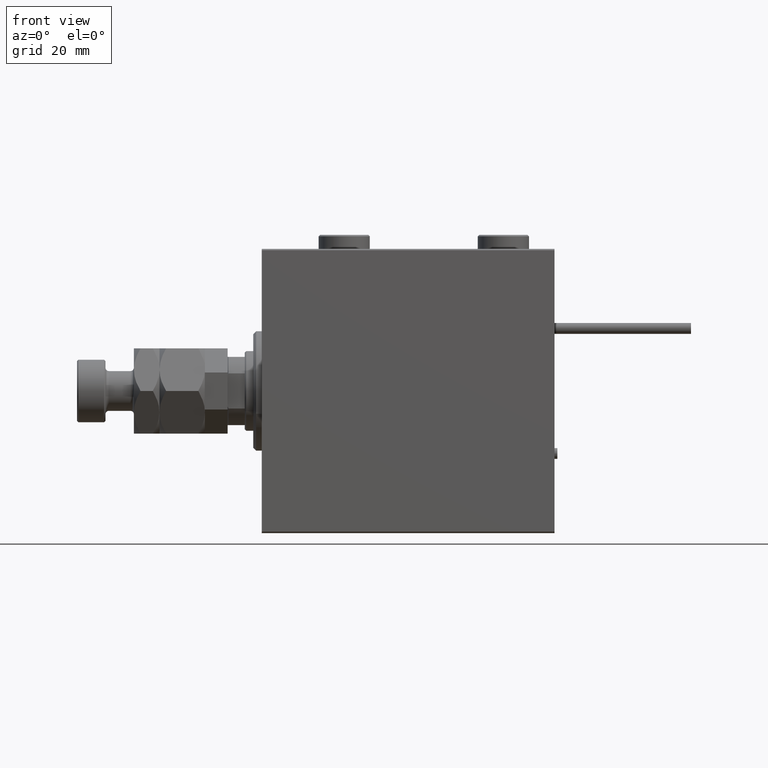
[diagram: clean part render]
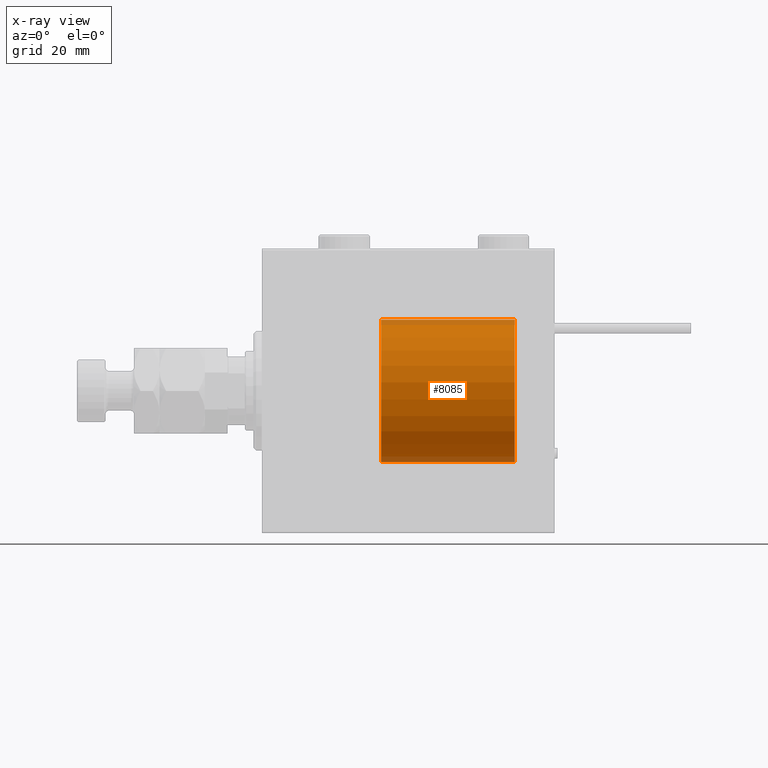
[diagram: x-ray — body ghosted, one internal face saturated and labeled with its STEP entity id]
A machine part, front view, then the same camera in x-ray: the body is ghosted and one INTERNAL B-rep face — a face not visible from any outside direction — is saturated and labeled: STEP entity #8085.
In plain terms, the highlighted cylindrical surface (partial cylindrical patch) has radius 25 mm, axis along (1, -0, -0).
Its self-contained STEP definition (entity closure, byte-faithful):
#7 = VECTOR ( 'NONE', #18981, 1000.000000000000000 ) ;
#522 = CIRCLE ( 'NONE', #39294, 25.00000000000000000 ) ;
#1568 = EDGE_CURVE ( 'NONE', #15772, #38441, #20667, .T. ) ;
#1921 = CARTESIAN_POINT ( 'NONE',  ( 0.000000000000000000, 0.000000000000000000, 47.00000000000000000 ) ) ;
#2536 = DIRECTION ( 'NONE',  ( -0.000000000000000000, -0.000000000000000000, -1.000000000000000000 ) ) ;
#2539 = EDGE_CURVE ( 'NONE', #19677, #15772, #23301, .T. ) ;
#4679 = ORIENTED_EDGE ( 'NONE', *, *, #1568, .T. ) ;
#7951 = AXIS2_PLACEMENT_3D ( 'NONE', #19262, #2536, #31666 ) ;
#8085 = ADVANCED_FACE ( 'NONE', ( #47313 ), #15213, .T. ) ;
#9875 = VECTOR ( 'NONE', #48212, 1000.000000000000000 ) ;
#10489 = CARTESIAN_POINT ( 'NONE',  ( -25.00000000000000000, 0.000000000000000000, 47.00000000000000000 ) ) ;
#12893 = EDGE_CURVE ( 'NONE', #14739, #38441, #30152, .T. ) ;
#14593 = DIRECTION ( 'NONE',  ( 0.000000000000000000, 0.000000000000000000, 1.000000000000000000 ) ) ;
#14739 = VERTEX_POINT ( 'NONE', #41576 ) ;
#15213 = CYLINDRICAL_SURFACE ( 'NONE', #7951, 25.00000000000000000 ) ;
#15772 = VERTEX_POINT ( 'NONE', #52407 ) ;
#16244 = DIRECTION ( 'NONE',  ( 1.000000000000000000, 0.000000000000000000, 0.000000000000000000 ) ) ;
#18137 = CARTESIAN_POINT ( 'NONE',  ( 25.00000000000000000, 3.061616997868383043E-15, 0.000000000000000000 ) ) ;
#18509 = ORIENTED_EDGE ( 'NONE', *, *, #12893, .F. ) ;
#18981 = DIRECTION ( 'NONE',  ( -0.000000000000000000, -0.000000000000000000, -1.000000000000000000 ) ) ;
#19262 = CARTESIAN_POINT ( 'NONE',  ( 0.000000000000000000, 0.000000000000000000, 47.00000000000000000 ) ) ;
#19677 = VERTEX_POINT ( 'NONE', #10489 ) ;
#20667 = CIRCLE ( 'NONE', #25832, 25.00000000000000000 ) ;
#22194 = EDGE_LOOP ( 'NONE', ( #18509, #50539, #39391, #4679 ) ) ;
#23301 = LINE ( 'NONE', #38476, #7 ) ;
#24084 = CARTESIAN_POINT ( 'NONE',  ( 0.000000000000000000, 0.000000000000000000, 0.000000000000000000 ) ) ;
#25832 = AXIS2_PLACEMENT_3D ( 'NONE', #24084, #53191, #16244 ) ;
#28573 = EDGE_CURVE ( 'NONE', #19677, #14739, #522, .T. ) ;
#30152 = LINE ( 'NONE', #44161, #9875 ) ;
#31666 = DIRECTION ( 'NONE',  ( -1.000000000000000000, 0.000000000000000000, 0.000000000000000000 ) ) ;
#34810 = DIRECTION ( 'NONE',  ( 1.000000000000000000, 0.000000000000000000, 0.000000000000000000 ) ) ;
#38441 = VERTEX_POINT ( 'NONE', #18137 ) ;
#38476 = CARTESIAN_POINT ( 'NONE',  ( -25.00000000000000000, 0.000000000000000000, 47.00000000000000000 ) ) ;
#39294 = AXIS2_PLACEMENT_3D ( 'NONE', #1921, #14593, #34810 ) ;
#39391 = ORIENTED_EDGE ( 'NONE', *, *, #2539, .T. ) ;
#41576 = CARTESIAN_POINT ( 'NONE',  ( 25.00000000000000000, 3.061616997868383043E-15, 47.00000000000000000 ) ) ;
#44161 = CARTESIAN_POINT ( 'NONE',  ( 25.00000000000000000, 3.061616997868383043E-15, 47.00000000000000000 ) ) ;
#47313 = FACE_OUTER_BOUND ( 'NONE', #22194, .T. ) ;
#48212 = DIRECTION ( 'NONE',  ( -0.000000000000000000, -0.000000000000000000, -1.000000000000000000 ) ) ;
#50539 = ORIENTED_EDGE ( 'NONE', *, *, #28573, .F. ) ;
#52407 = CARTESIAN_POINT ( 'NONE',  ( -25.00000000000000000, 0.000000000000000000, 0.000000000000000000 ) ) ;
#53191 = DIRECTION ( 'NONE',  ( 0.000000000000000000, 0.000000000000000000, 1.000000000000000000 ) ) ;